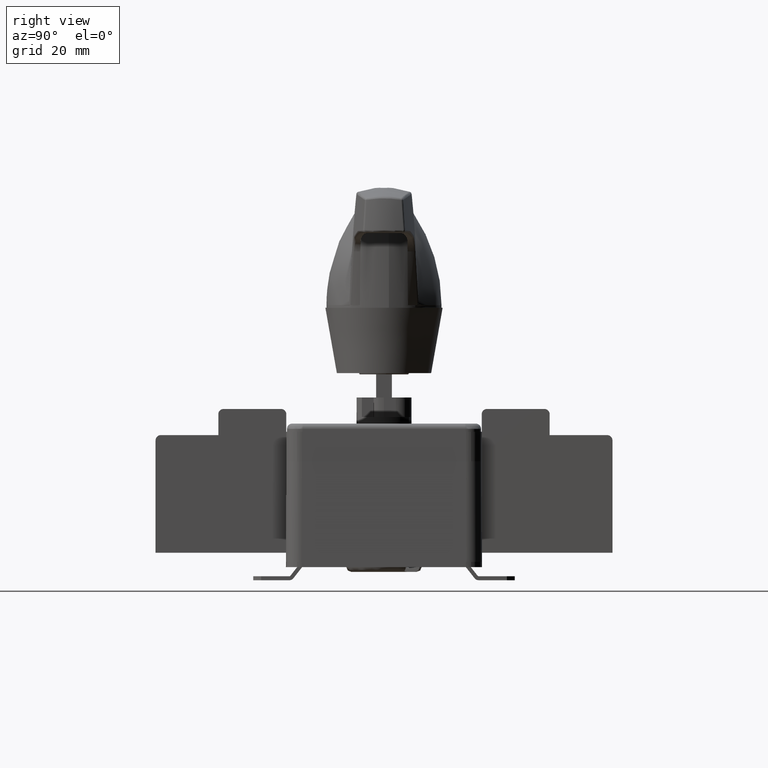
[diagram: clean part render]
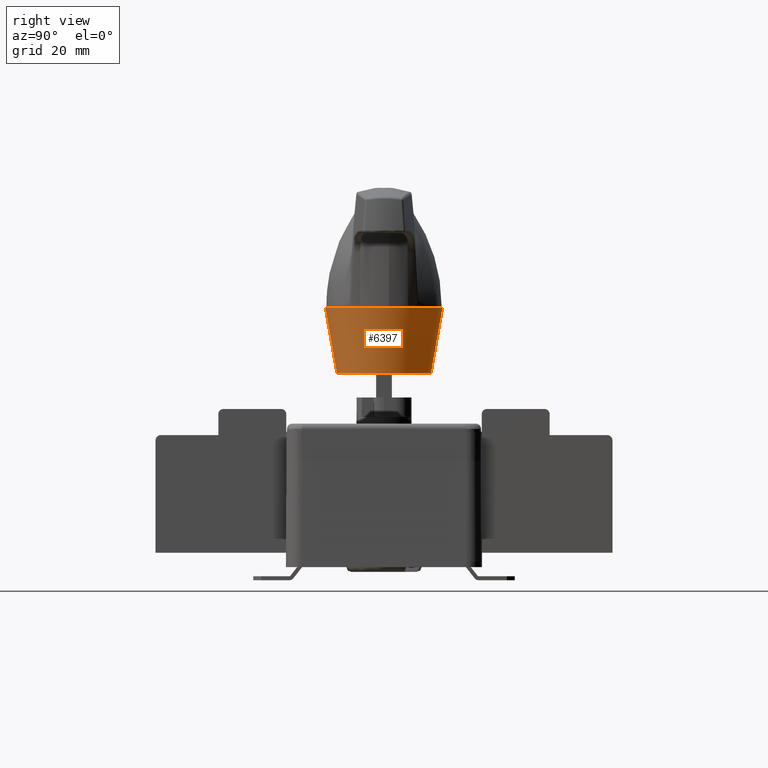
[diagram: same view with one face highlighted and labeled with its STEP entity id]
A machine part, right view. The second image highlights one B-rep face of the part: STEP entity #6397.
In plain terms, the highlighted conical surface has half-angle 10 deg.
Its self-contained STEP definition (entity closure, byte-faithful):
#1233 = CIRCLE ( 'NONE', #28461, 22.50000000000000000 ) ;
#3011 = VECTOR ( 'NONE', #8482, 1000.000000000000000 ) ;
#3259 = VERTEX_POINT ( 'NONE', #30182 ) ;
#4576 = ORIENTED_EDGE ( 'NONE', *, *, #15985, .T. ) ;
#5230 = ORIENTED_EDGE ( 'NONE', *, *, #22591, .T. ) ;
#6397 = ADVANCED_FACE ( 'NONE', ( #36329 ), #9753, .T. ) ;
#6402 = EDGE_CURVE ( 'NONE', #3259, #36551, #29522, .T. ) ;
#6765 = DIRECTION ( 'NONE',  ( 4.683137632076350900E-032, -0.1736481776669303600, 0.9848077530122080200 ) ) ;
#8482 = DIRECTION ( 'NONE',  ( 2.126576849575778100E-017, 0.1736481776669306400, 0.9848077530122080200 ) ) ;
#8555 = CARTESIAN_POINT ( 'NONE',  ( -6.541103756446940300, 0.5213923284127489600, 57.50000000000000000 ) ) ;
#8751 = DIRECTION ( 'NONE',  ( 4.755382578733919800E-032, 1.541976423090494900E-016, 1.000000000000000000 ) ) ;
#9753 = CONICAL_SURFACE ( 'NONE', #32138, 22.50000000000000000, 0.1745329251994331100 ) ;
#13750 = EDGE_CURVE ( 'NONE', #41956, #40083, #25286, .T. ) ;
#15985 = EDGE_CURVE ( 'NONE', #36551, #40083, #1233, .T. ) ;
#21161 = DIRECTION ( 'NONE',  ( -4.755382578733919800E-032, -1.541976423090494900E-016, -1.000000000000000000 ) ) ;
#22367 = DIRECTION ( 'NONE',  ( 0.0000000000000000000, -1.000000000000000000, 0.0000000000000000000 ) ) ;
#22591 = EDGE_CURVE ( 'NONE', #41956, #3259, #41972, .T. ) ;
#22677 = VECTOR ( 'NONE', #6765, 1000.000000000000200 ) ;
#24604 = EDGE_LOOP ( 'NONE', ( #5230, #36758, #4576, #36798 ) ) ;
#24804 = DIRECTION ( 'NONE',  ( 0.0000000000000000000, -1.000000000000000000, 0.0000000000000000000 ) ) ;
#25019 = CARTESIAN_POINT ( 'NONE',  ( -6.541103756446937600, 23.02139232841274800, 57.50000000000000000 ) ) ;
#25286 = LINE ( 'NONE', #39661, #22677 ) ;
#26336 = CARTESIAN_POINT ( 'NONE',  ( -6.541103756446937600, 23.02139232841274800, 57.50000000000000000 ) ) ;
#27894 = DIRECTION ( 'NONE',  ( 4.755382578733919800E-032, 1.541976423090494900E-016, 1.000000000000000000 ) ) ;
#28365 = CARTESIAN_POINT ( 'NONE',  ( -6.541103756446940300, 0.5213923284127489600, 57.50000000000000000 ) ) ;
#28461 = AXIS2_PLACEMENT_3D ( 'NONE', #8555, #21161, #24804 ) ;
#29522 = LINE ( 'NONE', #25019, #3011 ) ;
#30182 = CARTESIAN_POINT ( 'NONE',  ( -6.541103756446937600, 18.61321781070114400, 32.50000000000000000 ) ) ;
#31255 = DIRECTION ( 'NONE',  ( 0.0000000000000000000, -1.000000000000000000, 0.0000000000000000000 ) ) ;
#31395 = CARTESIAN_POINT ( 'NONE',  ( -6.541103756446940300, 0.5213923284127449700, 32.50000000000000000 ) ) ;
#31423 = CARTESIAN_POINT ( 'NONE',  ( -6.541103756446940300, -17.57043315387565500, 32.50000000000000000 ) ) ;
#32138 = AXIS2_PLACEMENT_3D ( 'NONE', #28365, #8751, #22367 ) ;
#34808 = AXIS2_PLACEMENT_3D ( 'NONE', #31395, #27894, #31255 ) ;
#36329 = FACE_OUTER_BOUND ( 'NONE', #24604, .T. ) ;
#36551 = VERTEX_POINT ( 'NONE', #26336 ) ;
#36758 = ORIENTED_EDGE ( 'NONE', *, *, #6402, .T. ) ;
#36798 = ORIENTED_EDGE ( 'NONE', *, *, #13750, .F. ) ;
#39661 = CARTESIAN_POINT ( 'NONE',  ( -6.541103756446940300, -21.97860767158725200, 57.50000000000000000 ) ) ;
#40083 = VERTEX_POINT ( 'NONE', #40588 ) ;
#40588 = CARTESIAN_POINT ( 'NONE',  ( -6.541103756446940300, -21.97860767158725200, 57.50000000000000000 ) ) ;
#41956 = VERTEX_POINT ( 'NONE', #31423 ) ;
#41972 = CIRCLE ( 'NONE', #34808, 18.09182548228839900 ) ;